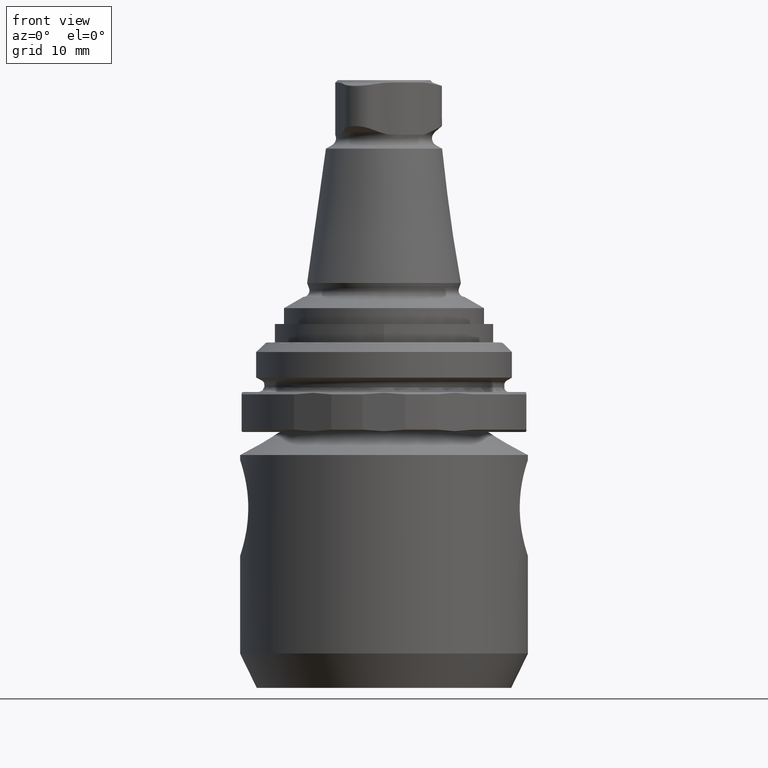
[diagram: clean part render]
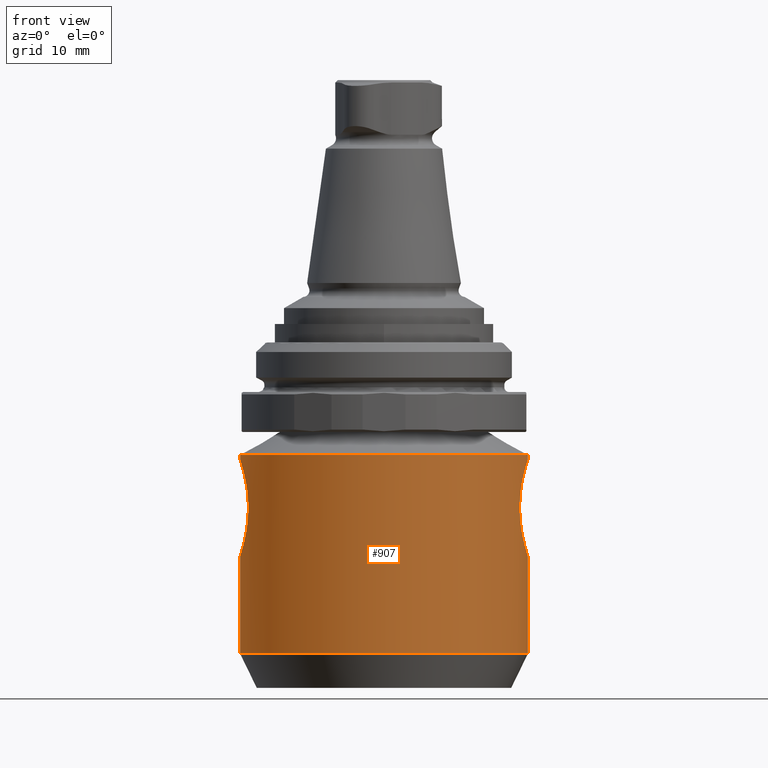
[diagram: same view with one face highlighted and labeled with its STEP entity id]
A machine part, front view. The second image highlights one B-rep face of the part: STEP entity #907.
In plain terms, the highlighted cylindrical surface (bore or boss wall) has radius 18 mm, axis along (0, 0, -1).
Its self-contained STEP definition (entity closure, byte-faithful):
#115=CIRCLE('',#988,18.);
#116=CIRCLE('',#989,18.);
#171=ORIENTED_EDGE('',*,*,#423,.F.);
#172=ORIENTED_EDGE('',*,*,#424,.T.);
#173=ORIENTED_EDGE('',*,*,#425,.F.);
#174=ORIENTED_EDGE('',*,*,#426,.T.);
#423=EDGE_CURVE('',#549,#549,#641,.T.);
#424=EDGE_CURVE('',#550,#550,#115,.T.);
#425=EDGE_CURVE('',#551,#551,#116,.T.);
#426=EDGE_CURVE('',#552,#552,#642,.T.);
#549=VERTEX_POINT('',#1407);
#550=VERTEX_POINT('',#1409);
#551=VERTEX_POINT('',#1411);
#552=VERTEX_POINT('',#1431);
#641=B_SPLINE_CURVE_WITH_KNOTS('',3,(#1388,#1389,#1390,#1391,#1392,#1393,
#1394,#1395,#1396,#1397,#1398,#1399,#1400,#1401,#1402,#1403,#1404,#1405,
#1406),.UNSPECIFIED.,.T.,.F.,(1,1,1,1,1,1,1,1,1,1,1,1,1,1,1,1,1,1,1,1,1,
1,1),(-0.00708470168974252,-0.00472313445982835,-0.00236156722991417,6.91166660310213E-19,
0.00236156722991417,0.00472313445982834,0.00708470168974251,0.00944626891965668,
0.0118078361495709,0.014169403379485,0.0165309706093992,0.0188925378393134,
0.0212541050692275,0.0236156722991417,0.0259772395290559,0.0283388067589701,
0.0307003739888842,0.0330619412187984,0.0354235084487126,0.0377850756786267,
0.0401466429085409,0.0425082101384551,0.0448697773683693),.UNSPECIFIED.);
#642=B_SPLINE_CURVE_WITH_KNOTS('',3,(#1412,#1413,#1414,#1415,#1416,#1417,
#1418,#1419,#1420,#1421,#1422,#1423,#1424,#1425,#1426,#1427,#1428,#1429,
#1430),.UNSPECIFIED.,.T.,.F.,(1,1,1,1,1,1,1,1,1,1,1,1,1,1,1,1,1,1,1,1,1,
1,1),(-0.0070869858027963,-0.0047246572018642,-0.0023623286009321,6.24294373992237E-19,
0.0023623286009321,0.0047246572018642,0.0070869858027963,0.0094493144037284,
0.0118116430046605,0.0141739716055926,0.0165363002065247,0.0188986288074568,
0.0212609574083889,0.023623286009321,0.0259856146102531,0.0283479432111852,
0.0307102718121173,0.0330726004130494,0.0354349290139815,0.0377972576149136,
0.0401595862158457,0.0425219148167778,0.0448842434177099),.UNSPECIFIED.);
#683=EDGE_LOOP('',(#171));
#684=EDGE_LOOP('',(#172));
#685=EDGE_LOOP('',(#173));
#686=EDGE_LOOP('',(#174));
#781=FACE_BOUND('',#683,.T.);
#782=FACE_BOUND('',#684,.T.);
#783=FACE_BOUND('',#685,.T.);
#784=FACE_BOUND('',#686,.T.);
#879=CYLINDRICAL_SURFACE('',#987,18.);
#907=ADVANCED_FACE('',(#781,#782,#783,#784),#879,.T.);
#987=AXIS2_PLACEMENT_3D('',#1387,#1112,#1113);
#988=AXIS2_PLACEMENT_3D('',#1408,#1114,#1115);
#989=AXIS2_PLACEMENT_3D('',#1410,#1116,#1117);
#1112=DIRECTION('',(1.22464605849178E-16,1.51929083932157E-64,-1.));
#1113=DIRECTION('',(6.16297582203915E-33,1.,7.54746404904039E-49));
#1114=DIRECTION('',(1.22464605849178E-16,1.51929083932157E-64,-1.));
#1115=DIRECTION('',(6.16297582203915E-33,1.,7.54746404904039E-49));
#1116=DIRECTION('',(1.22464605849178E-16,1.51929083932157E-64,-1.));
#1117=DIRECTION('',(6.16297582203915E-33,1.,7.54746404904039E-49));
#1387=CARTESIAN_POINT('',(7.34787635095068E-15,9.11574503592941E-63,-60.));
#1388=CARTESIAN_POINT('',(-17.889710576669,2.37436773295698,-31.1748414508729));
#1389=CARTESIAN_POINT('',(-18.0551148958687,-0.000196721668244474,-31.6547024800291));
#1390=CARTESIAN_POINT('',(-17.8898298398563,-2.373580846284,-31.1752597157652));
#1391=CARTESIAN_POINT('',(-17.4941715621497,-4.35273809991195,-29.8434788026626));
#1392=CARTESIAN_POINT('',(-17.0884728213579,-5.68015412582003,-27.8667339608448));
#1393=CARTESIAN_POINT('',(-16.9118299480978,-6.15922628696051,-25.5003015028954));
#1394=CARTESIAN_POINT('',(-17.087586968013,-5.68293198395309,-23.126059988973));
#1395=CARTESIAN_POINT('',(-17.4949912914916,-4.35004750944793,-21.1427993901652));
#1396=CARTESIAN_POINT('',(-17.8900605955102,-2.37074860978151,-19.8138360762009));
#1397=CARTESIAN_POINT('',(-18.0548297420023,-0.00293705979918359,-19.3357604731787));
#1398=CARTESIAN_POINT('',(-17.8906194725714,2.36806755921507,-19.812036009567));
#1399=CARTESIAN_POINT('',(-17.494797583745,4.35083021522609,-21.1434199132595));
#1400=CARTESIAN_POINT('',(-17.088057649307,5.68143183439367,-23.1243277923902));
#1401=CARTESIAN_POINT('',(-16.911823095961,6.15924368991015,-25.4941091730108));
#1402=CARTESIAN_POINT('',(-17.0880265007755,5.68159328416342,-27.8651852235075));
#1403=CARTESIAN_POINT('',(-17.4944232749279,4.35172689074808,-29.8444255346954));
#1404=CARTESIAN_POINT('',(-17.889710576669,2.37436773295698,-31.1748414508729));
#1405=CARTESIAN_POINT('',(-18.0551148958687,-0.000196721668244474,-31.6547024800291));
#1406=CARTESIAN_POINT('',(-17.8898298398563,-2.373580846284,-31.1752597157652));
#1407=CARTESIAN_POINT('',(-18.,7.11942990800078E-16,-31.4948185144591));
#1408=CARTESIAN_POINT('',(2.31232401076849E-15,2.86865961209269E-63,-18.8815698604072));
#1409=CARTESIAN_POINT('',(2.31232401076849E-15,18.,-18.8815698604072));
#1410=CARTESIAN_POINT('',(5.35241414265399E-15,6.64018286655351E-63,-43.70580467344));
#1411=CARTESIAN_POINT('',(5.35241414265399E-15,18.,-43.70580467344));
#1412=CARTESIAN_POINT('',(17.8894885199056,2.37495503398702,-31.1737656251336));
#1413=CARTESIAN_POINT('',(18.055221154206,-0.000202330218760738,-31.66070770603));
#1414=CARTESIAN_POINT('',(17.8896268632704,-2.37414571311198,-31.1742582322586));
#1415=CARTESIAN_POINT('',(17.4952799454344,-4.3473575084847,-29.8319196220116));
#1416=CARTESIAN_POINT('',(17.0914175317597,-5.67151991483547,-27.8529955891046));
#1417=CARTESIAN_POINT('',(16.9119420857732,-6.15892095011146,-25.4889530277812));
#1418=CARTESIAN_POINT('',(17.084327966712,-5.69240779591079,-23.1117631387058));
#1419=CARTESIAN_POINT('',(17.4934395726579,-4.35716443011942,-21.1274211919449));
#1420=CARTESIAN_POINT('',(17.8901592184585,-2.37139947919,-19.8062289625566));
#1421=CARTESIAN_POINT('',(18.0548154149428,-0.00228312850456613,-19.3339689250364));
#1422=CARTESIAN_POINT('',(17.8905785583381,2.3695001599707,-19.8048645009462));
#1423=CARTESIAN_POINT('',(17.4932370709725,4.35791329416311,-21.12817427893));
#1424=CARTESIAN_POINT('',(17.0848491097876,5.69077450405614,-23.1095807879824));
#1425=CARTESIAN_POINT('',(16.9118741855073,6.15910495116715,-25.4833991433854));
#1426=CARTESIAN_POINT('',(17.091130177741,5.67252415209172,-27.8525068953276));
#1427=CARTESIAN_POINT('',(17.4956851944784,4.34567084238066,-29.8334071630202));
#1428=CARTESIAN_POINT('',(17.8894885199056,2.37495503398702,-31.1737656251336));
#1429=CARTESIAN_POINT('',(18.055221154206,-0.000202330218760738,-31.66070770603));
#1430=CARTESIAN_POINT('',(17.8896268632704,-2.37414571311198,-31.1742582322586));
#1431=CARTESIAN_POINT('',(18.,-6.43178829937214E-16,-31.498475780252));